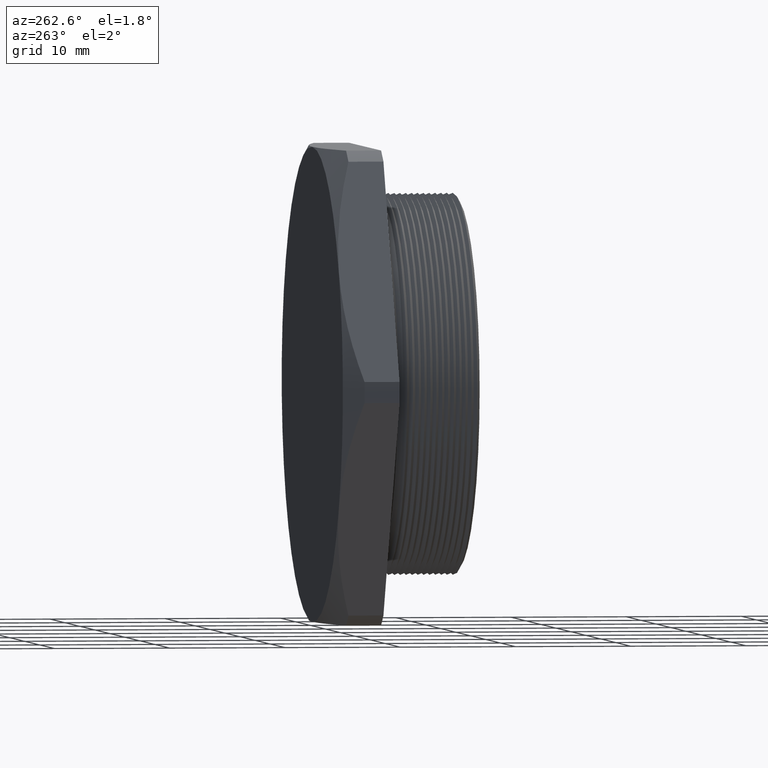
[diagram: clean part render]
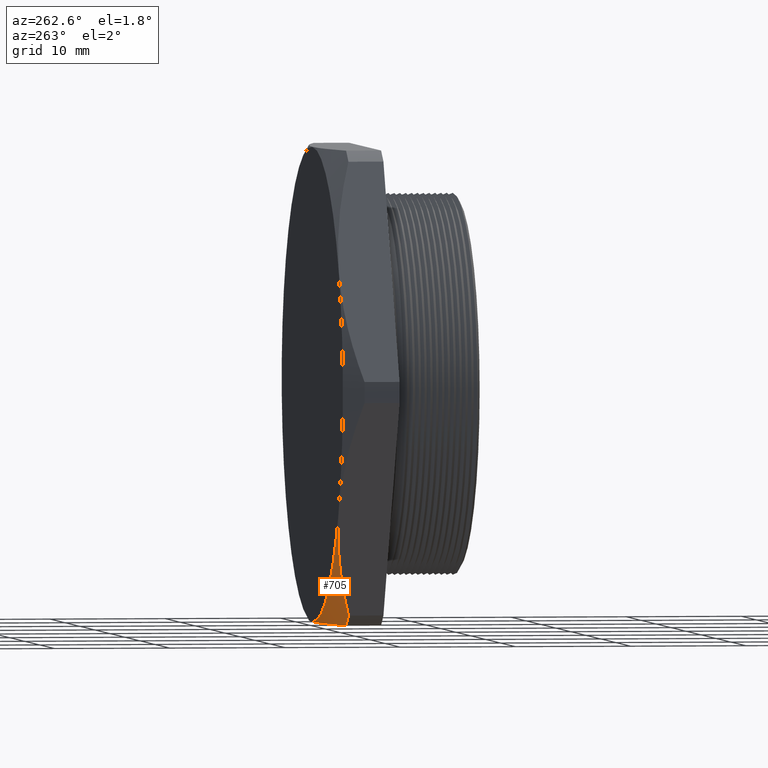
[diagram: same view with one face highlighted and labeled with its STEP entity id]
A machine part, auxiliary view. The second image highlights one B-rep face of the part: STEP entity #705.
In plain terms, the highlighted conical surface has half-angle 60 deg.
Its self-contained STEP definition (entity closure, byte-faithful):
#169 = EDGE_CURVE ( 'NONE', #213, #192, #1063, .T. ) ;
#186 = VERTEX_POINT ( 'NONE', #1144 ) ;
#192 = VERTEX_POINT ( 'NONE', #1141 ) ;
#213 = VERTEX_POINT ( 'NONE', #1188 ) ;
#260 = EDGE_CURVE ( 'NONE', #263, #186, #1272, .T. ) ;
#263 = VERTEX_POINT ( 'NONE', #1318 ) ;
#264 = EDGE_CURVE ( 'NONE', #263, #192, #1304, .T. ) ;
#705 = ADVANCED_FACE ( 'NONE', ( #2069 ), #2068, .T. ) ;
#706 = EDGE_LOOP ( 'NONE', ( #756, #758, #759, #760 ) ) ;
#756 = ORIENTED_EDGE ( 'NONE', *, *, #757, .F. ) ;
#757 = EDGE_CURVE ( 'NONE', #186, #213, #2139, .T. ) ;
#758 = ORIENTED_EDGE ( 'NONE', *, *, #260, .F. ) ;
#759 = ORIENTED_EDGE ( 'NONE', *, *, #264, .T. ) ;
#760 = ORIENTED_EDGE ( 'NONE', *, *, #169, .F. ) ;
#1053 = CARTESIAN_POINT ( 'NONE',  ( -0.4853497639640150200, 0.4295802943293059500, -0.7693495493727640100 ) ) ;
#1054 = CARTESIAN_POINT ( 'NONE',  ( -0.5199832553568258800, 0.4482032529187408000, -0.7093625826369158700 ) ) ;
#1055 = CARTESIAN_POINT ( 'NONE',  ( -0.5548979932340358800, 0.4634044384138372700, -0.6488884827006383700 ) ) ;
#1056 = CARTESIAN_POINT ( 'NONE',  ( -0.6078535885384339600, 0.4791072293914299100, -0.5571667010883656300 ) ) ;
#1057 = CARTESIAN_POINT ( 'NONE',  ( -0.6256028122239919400, 0.4831569840806349000, -0.5264241438700740800 ) ) ;
#1058 = CARTESIAN_POINT ( 'NONE',  ( -0.6613187935565420000, 0.4886098759984572300, -0.4645622495599157600 ) ) ;
#1059 = CARTESIAN_POINT ( 'NONE',  ( -0.6793071313445975300, 0.4899999999999999900, -0.4334055345672928600 ) ) ;
#1060 = CARTESIAN_POINT ( 'NONE',  ( -0.6971504500464731400, 0.4899999999999999900, -0.4024999999999997500 ) ) ;
#1063 = B_SPLINE_CURVE_WITH_KNOTS ( 'NONE', 3,
 ( #1060, #1059, #1058, #1057, #1056, #1055, #1054, #1053 ),
 .UNSPECIFIED., .F., .F.,
 ( 4, 2, 2, 4 ),
 ( 0.01086602278312625300, 0.01356583170703961000, 0.01626564063095296800, 0.02166525847877969300 ),
 .UNSPECIFIED. ) ;
#1141 = CARTESIAN_POINT ( 'NONE',  ( -0.4853497639640150200, 0.4295802943293059500, -0.7693495493727640100 ) ) ;
#1144 = CARTESIAN_POINT ( 'NONE',  ( 0.0000000000000000000, 0.4899999999999999900, -0.8050000000000000500 ) ) ;
#1188 = CARTESIAN_POINT ( 'NONE',  ( -0.6971504500464731400, 0.4899999999999999900, -0.4024999999999997500 ) ) ;
#1262 = CARTESIAN_POINT ( 'NONE',  ( 0.0000000000000000000, 0.4899999999999999900, -0.8050000000000000500 ) ) ;
#1263 = CARTESIAN_POINT ( 'NONE',  ( -0.07136564877850476400, 0.4899999999999999900, -0.8049999999999997200 ) ) ;
#1264 = CARTESIAN_POINT ( 'NONE',  ( -0.1423747481056253100, 0.4844391161815511700, -0.8050000000000000500 ) ) ;
#1265 = CARTESIAN_POINT ( 'NONE',  ( -0.2484187768084686300, 0.4687734099245848300, -0.8050000000000000500 ) ) ;
#1266 = CARTESIAN_POINT ( 'NONE',  ( -0.2836895276705017100, 0.4623465510397145000, -0.8049999999999998300 ) ) ;
#1267 = CARTESIAN_POINT ( 'NONE',  ( -0.3540952920400892200, 0.4473758207345495100, -0.8050000000000000500 ) ) ;
#1268 = CARTESIAN_POINT ( 'NONE',  ( -0.3890275207638569900, 0.4388757389556709500, -0.8049999999999998300 ) ) ;
#1269 = CARTESIAN_POINT ( 'NONE',  ( -0.4236013721649162800, 0.4295802943293059500, -0.8050000000000000500 ) ) ;
#1272 = B_SPLINE_CURVE_WITH_KNOTS ( 'NONE', 3,
 ( #1269, #1268, #1267, #1266, #1265, #1264, #1263, #1262 ),
 .UNSPECIFIED., .F., .F.,
 ( 4, 2, 2, 4 ),
 ( 0.02148594901952961800, 0.02419968586596140500, 0.02691342271239319200, 0.03234089640525676700 ),
 .UNSPECIFIED. ) ;
#1300 = DIRECTION ( 'NONE',  ( 0.0000000000000000000, 0.0000000000000000000, -1.000000000000000000 ) ) ;
#1301 = DIRECTION ( 'NONE',  ( 0.0000000000000000000, 1.000000000000000000, 0.0000000000000000000 ) ) ;
#1302 = CARTESIAN_POINT ( 'NONE',  ( 0.0000000000000000000, 0.4295802943293059500, 0.0000000000000000000 ) ) ;
#1303 = AXIS2_PLACEMENT_3D ( 'NONE', #1302, #1301, #1300 ) ;
#1304 = CIRCLE ( 'NONE', #1303, 0.9096499999999999600 ) ;
#1318 = CARTESIAN_POINT ( 'NONE',  ( -0.4236013721649162800, 0.4295802943293059500, -0.8050000000000000500 ) ) ;
#2063 = DIRECTION ( 'NONE',  ( 0.0000000000000000000, 0.0000000000000000000, 1.000000000000000000 ) ) ;
#2064 = DIRECTION ( 'NONE',  ( 0.0000000000000000000, -1.000000000000000000, 0.0000000000000000000 ) ) ;
#2065 = CARTESIAN_POINT ( 'NONE',  ( 0.0000000000000000000, 0.4899999999999999900, 0.0000000000000000000 ) ) ;
#2066 = AXIS2_PLACEMENT_3D ( 'NONE', #2065, #2064, #2063 ) ;
#2068 = CONICAL_SURFACE ( 'NONE', #2066, 0.8050000000000000500, 1.047197551196600100 ) ;
#2069 = FACE_OUTER_BOUND ( 'NONE', #706, .T. ) ;
#2135 = DIRECTION ( 'NONE',  ( 0.0000000000000000000, 0.0000000000000000000, 1.000000000000000000 ) ) ;
#2136 = DIRECTION ( 'NONE',  ( 0.0000000000000000000, 1.000000000000000000, 0.0000000000000000000 ) ) ;
#2137 = CARTESIAN_POINT ( 'NONE',  ( 0.0000000000000000000, 0.4899999999999999900, 0.0000000000000000000 ) ) ;
#2138 = AXIS2_PLACEMENT_3D ( 'NONE', #2137, #2136, #2135 ) ;
#2139 = CIRCLE ( 'NONE', #2138, 0.8050000000000000500 ) ;